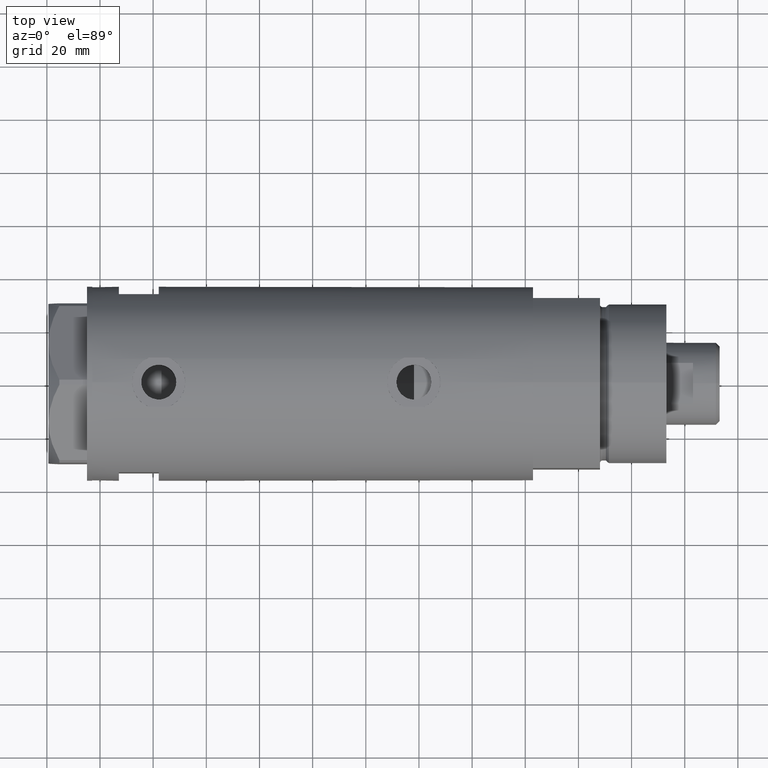
[diagram: clean part render]
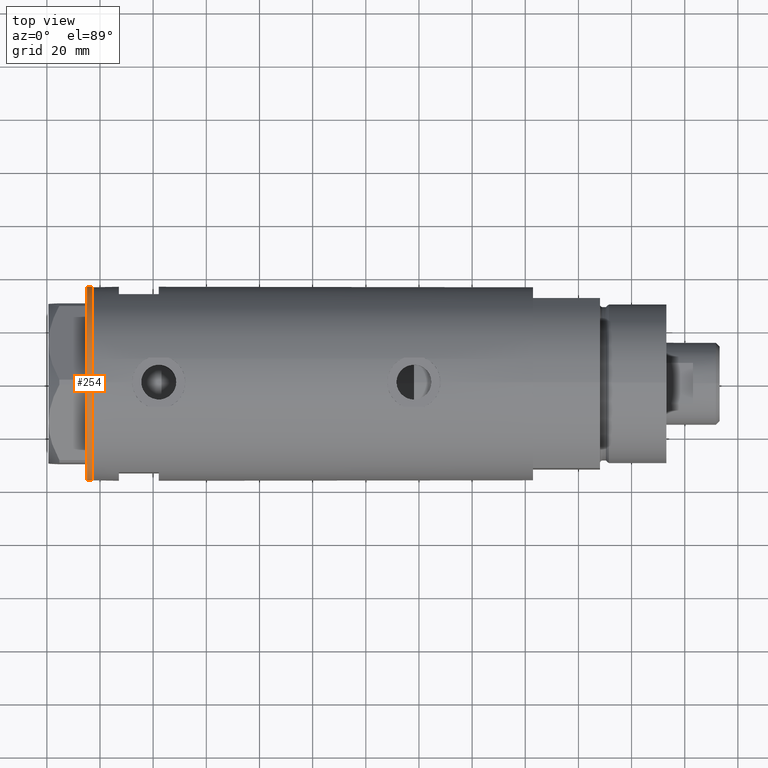
[diagram: same view with one face highlighted and labeled with its STEP entity id]
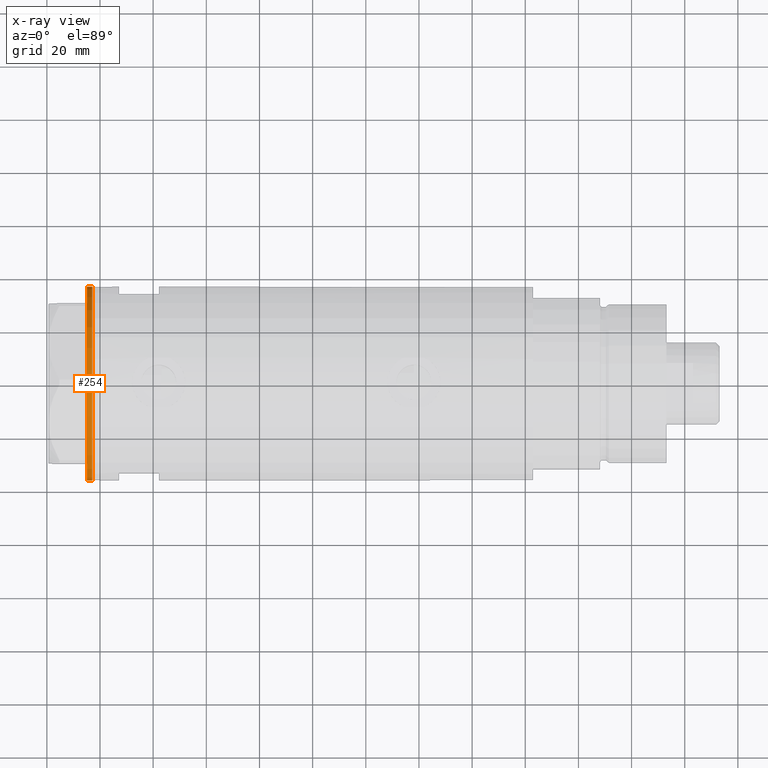
[diagram: x-ray of the same camera — body ghosted, the highlighted face saturated]
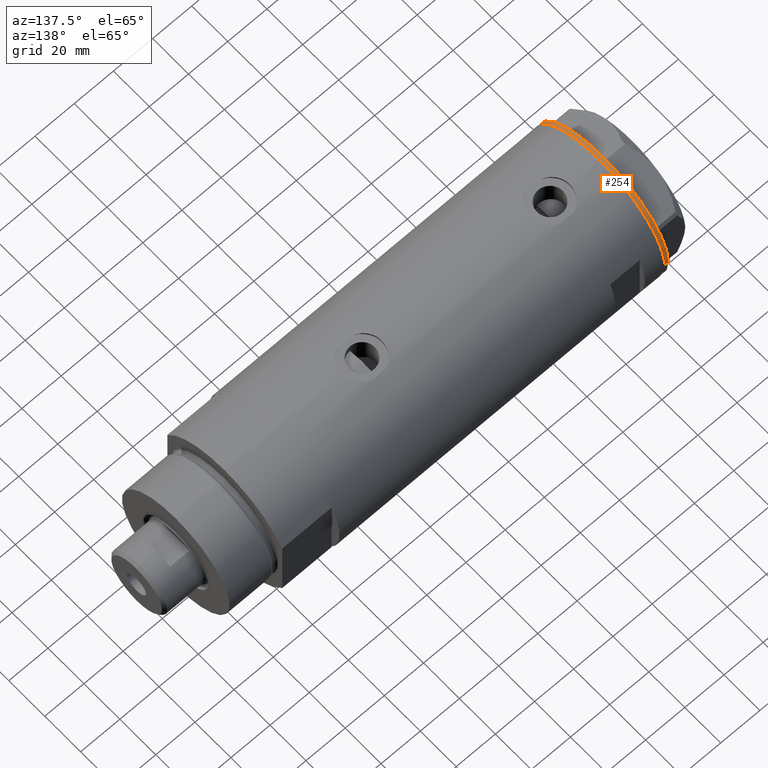
[diagram: same view with one face highlighted and labeled with its STEP entity id]
A machine part, top view. The second image highlights one B-rep face of the part: STEP entity #254.
The next image is the same camera in x-ray: the body ghosted, the highlighted face saturated — about 0% of this face is hidden behind the body in this view.
A second angle (auxiliary view) of the same face is appended — the face is thin or edge-on in the first view.
In plain terms, the highlighted cylindrical surface (partial cylindrical patch) has radius 36.5 mm, axis along (-1, -0, 0).
Its self-contained STEP definition (entity closure, byte-faithful):
#70 = CARTESIAN_POINT ( 'NONE',  ( 36.50000000000000000, 0.000000000000000000, -2.000000000000000000 ) ) ;
#90 = VERTEX_POINT ( 'NONE', #157 ) ;
#157 = CARTESIAN_POINT ( 'NONE',  ( 36.50000000000000000, 0.000000000000000000, 0.000000000000000000 ) ) ;
#254 = ADVANCED_FACE ( 'NONE', ( #1360 ), #4456, .T. ) ;
#386 = ORIENTED_EDGE ( 'NONE', *, *, #1762, .T. ) ;
#444 = VERTEX_POINT ( 'NONE', #2355 ) ;
#496 = CARTESIAN_POINT ( 'NONE',  ( 0.000000000000000000, 0.000000000000000000, 0.000000000000000000 ) ) ;
#552 = DIRECTION ( 'NONE',  ( -0.000000000000000000, -0.000000000000000000, 1.000000000000000000 ) ) ;
#567 = CARTESIAN_POINT ( 'NONE',  ( 36.50000000000000000, 0.000000000000000000, -2.000000000000000000 ) ) ;
#760 = CIRCLE ( 'NONE', #3947, 36.50000000000000000 ) ;
#957 = DIRECTION ( 'NONE',  ( -1.000000000000000000, 0.000000000000000000, 0.000000000000000000 ) ) ;
#996 = DIRECTION ( 'NONE',  ( -0.000000000000000000, -0.000000000000000000, 1.000000000000000000 ) ) ;
#1077 = AXIS2_PLACEMENT_3D ( 'NONE', #2752, #996, #3809 ) ;
#1090 = AXIS2_PLACEMENT_3D ( 'NONE', #2400, #3390, #957 ) ;
#1096 = CARTESIAN_POINT ( 'NONE',  ( -36.50000000000000000, 4.469960816887838430E-15, -2.000000000000000000 ) ) ;
#1286 = CIRCLE ( 'NONE', #1090, 36.50000000000000000 ) ;
#1336 = DIRECTION ( 'NONE',  ( -1.000000000000000000, 0.000000000000000000, 0.000000000000000000 ) ) ;
#1360 = FACE_OUTER_BOUND ( 'NONE', #3713, .T. ) ;
#1374 = VERTEX_POINT ( 'NONE', #3705 ) ;
#1398 = EDGE_CURVE ( 'NONE', #2871, #444, #1286, .T. ) ;
#1762 = EDGE_CURVE ( 'NONE', #2871, #90, #4358, .T. ) ;
#1928 = DIRECTION ( 'NONE',  ( -0.000000000000000000, -0.000000000000000000, 1.000000000000000000 ) ) ;
#1955 = ORIENTED_EDGE ( 'NONE', *, *, #2885, .F. ) ;
#2355 = CARTESIAN_POINT ( 'NONE',  ( -36.50000000000000000, 4.469960816887838430E-15, -2.000000000000000000 ) ) ;
#2390 = VECTOR ( 'NONE', #552, 1000.000000000000000 ) ;
#2400 = CARTESIAN_POINT ( 'NONE',  ( 0.000000000000000000, 0.000000000000000000, -2.000000000000000000 ) ) ;
#2659 = VECTOR ( 'NONE', #1928, 1000.000000000000000 ) ;
#2752 = CARTESIAN_POINT ( 'NONE',  ( 0.000000000000000000, 0.000000000000000000, -2.000000000000000000 ) ) ;
#2802 = LINE ( 'NONE', #1096, #2390 ) ;
#2866 = ORIENTED_EDGE ( 'NONE', *, *, #4271, .T. ) ;
#2871 = VERTEX_POINT ( 'NONE', #70 ) ;
#2885 = EDGE_CURVE ( 'NONE', #444, #1374, #2802, .T. ) ;
#3040 = DIRECTION ( 'NONE',  ( 0.000000000000000000, 0.000000000000000000, -1.000000000000000000 ) ) ;
#3220 = ORIENTED_EDGE ( 'NONE', *, *, #1398, .F. ) ;
#3390 = DIRECTION ( 'NONE',  ( 0.000000000000000000, 0.000000000000000000, -1.000000000000000000 ) ) ;
#3705 = CARTESIAN_POINT ( 'NONE',  ( -36.50000000000000000, 4.469960816887838430E-15, 0.000000000000000000 ) ) ;
#3713 = EDGE_LOOP ( 'NONE', ( #1955, #3220, #386, #2866 ) ) ;
#3809 = DIRECTION ( 'NONE',  ( 1.000000000000000000, 0.000000000000000000, 0.000000000000000000 ) ) ;
#3947 = AXIS2_PLACEMENT_3D ( 'NONE', #496, #3040, #1336 ) ;
#4271 = EDGE_CURVE ( 'NONE', #90, #1374, #760, .T. ) ;
#4358 = LINE ( 'NONE', #567, #2659 ) ;
#4456 = CYLINDRICAL_SURFACE ( 'NONE', #1077, 36.50000000000000000 ) ;